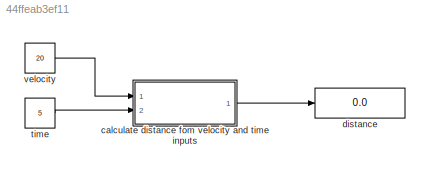
MODEL slx_44ffeab3ef11
KIND model
CONFIG AbsTol = auto
CONFIG EnableMultiTasking = off
CONFIG FixedStep = auto
CONFIG MaxStep = auto
CONFIG MinStep = auto
CONFIG RelTol = 1e-3
CONFIG SampleTimeConstraint = Unconstrained
CONFIG SolverName = VariableStepAuto
CONFIG StartTime = 0.0
CONFIG StopTime = 10.0
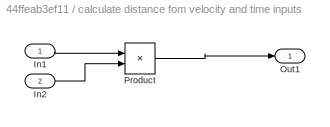
BLOCK [SubSystem] calculate distance fom velocity and time inputs
  Ports = [2, 1]
  RequestExecContextInheritance = off
BLOCK [Inport] calculate distance fom velocity and time inputs/In1
BLOCK [Inport] calculate distance fom velocity and time inputs/In2
  Port = 2
BLOCK [Outport] calculate distance fom velocity and time inputs/Out1
BLOCK [Product] calculate distance fom velocity and time inputs/Product
  Ports = [2, 1]
BLOCK [Display] distance
  Decimation = 1
  Ports = [1]
BLOCK [Constant] time
  Value = 5
BLOCK [Constant] velocity
  Value = 20
LINE calculate distance fom velocity and time inputs/In1:1 -> calculate distance fom velocity and time inputs/Product:1
LINE calculate distance fom velocity and time inputs/In2:1 -> calculate distance fom velocity and time inputs/Product:2
LINE calculate distance fom velocity and time inputs/Product:1 -> calculate distance fom velocity and time inputs/Out1:1
LINE calculate distance fom velocity and time inputs:1 -> distance:1
LINE time:1 -> calculate distance fom velocity and time inputs:2
LINE velocity:1 -> calculate distance fom velocity and time inputs:1
